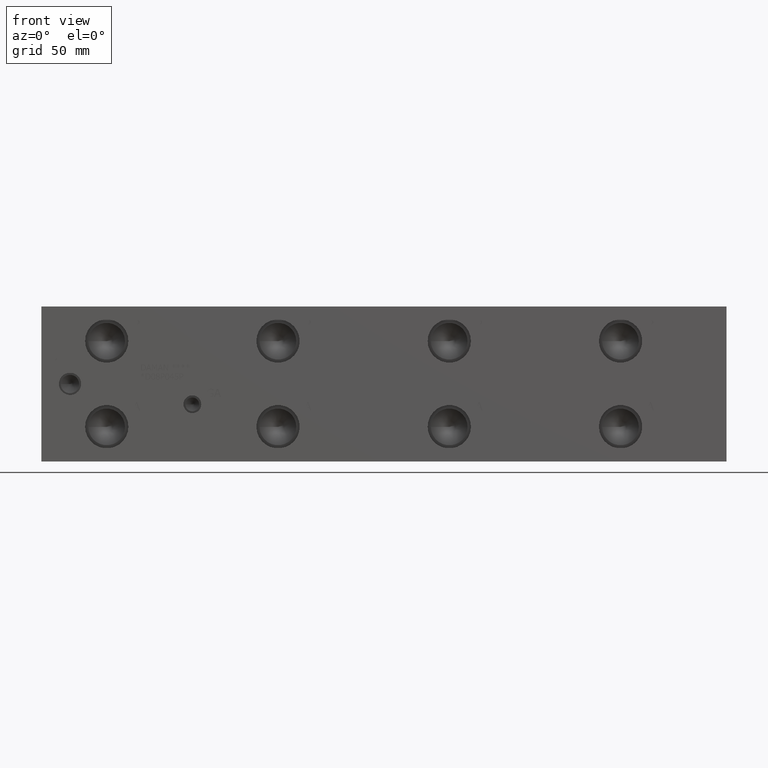
[diagram: clean part render]
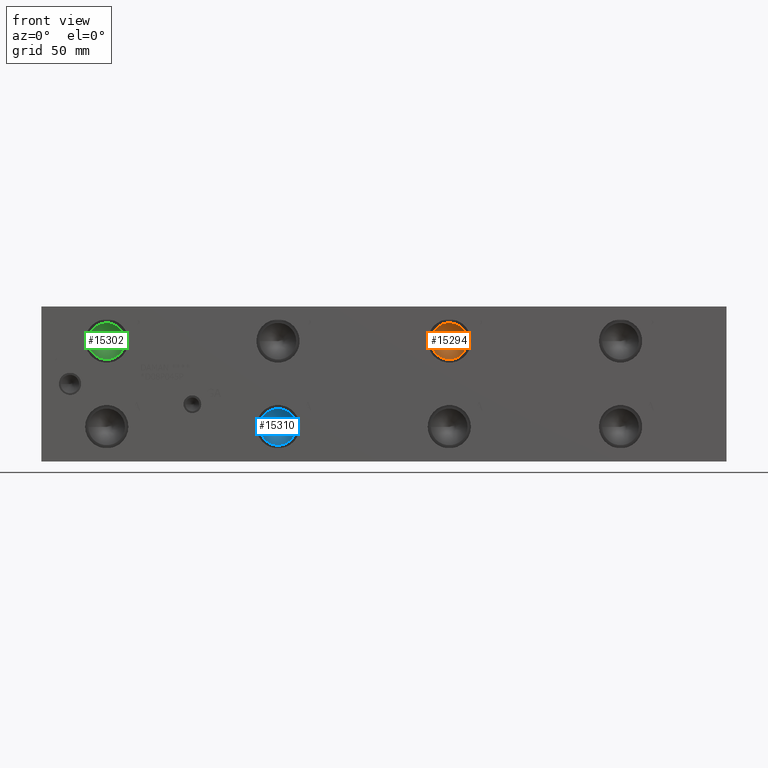
[diagram: same view with three faces highlighted in distinct colors, each labeled with its STEP entity id]
A machine part, front view with three faces highlighted in distinct colors.
Their STEP definitions:

[orange] entity #15294 — the highlighted conical surface has half-angle 60 deg.
#148=CONICAL_SURFACE('',#16049,7.14375,1.0471975511966);
#493=CIRCLE('',#16050,14.2875);
#494=CIRCLE('',#16051,14.2875);
#1935=FACE_OUTER_BOUND('',#2823,.T.);
#2823=EDGE_LOOP('',(#12756,#12757,#12758,#12759));
#4304=LINE('',#25697,#5667);
#5667=VECTOR('',#18878,7.14375);
#6955=VERTEX_POINT('',#25693);
#6956=VERTEX_POINT('',#25694);
#6957=VERTEX_POINT('',#25696);
#8995=EDGE_CURVE('',#6955,#6956,#493,.T.);
#8996=EDGE_CURVE('',#6956,#6957,#4304,.T.);
#8997=EDGE_CURVE('',#6956,#6955,#494,.T.);
#12756=ORIENTED_EDGE('',*,*,#8995,.T.);
#12757=ORIENTED_EDGE('',*,*,#8996,.T.);
#12758=ORIENTED_EDGE('',*,*,#8996,.F.);
#12759=ORIENTED_EDGE('',*,*,#8997,.T.);
#15294=ADVANCED_FACE('',(#1935),#148,.F.);
#16049=AXIS2_PLACEMENT_3D('',#25692,#18874,#18875);
#16050=AXIS2_PLACEMENT_3D('',#25695,#18876,#18877);
#16051=AXIS2_PLACEMENT_3D('',#25698,#18879,#18880);
#18874=DIRECTION('center_axis',(0.,-1.,0.));
#18875=DIRECTION('ref_axis',(1.,0.,0.));
#18876=DIRECTION('center_axis',(0.,-1.,0.));
#18877=DIRECTION('ref_axis',(1.,0.,0.));
#18878=DIRECTION('',(0.866025403784438,0.5,1.06057523872491E-16));
#18879=DIRECTION('center_axis',(0.,-1.,0.));
#18880=DIRECTION('ref_axis',(1.,0.,0.));
#25692=CARTESIAN_POINT('Origin',(317.5,23.9485359855234,93.6752));
#25693=CARTESIAN_POINT('',(331.7875,19.82409,93.6752));
#25694=CARTESIAN_POINT('',(303.2125,19.82409,93.6752));
#25695=CARTESIAN_POINT('Origin',(317.5,19.82409,93.6752));
#25696=CARTESIAN_POINT('',(317.5,28.0729819710468,93.6752));
#25697=CARTESIAN_POINT('',(310.35625,23.9485359855234,93.6752));
#25698=CARTESIAN_POINT('Origin',(317.5,19.82409,93.6752));

[blue] entity #15310 — the highlighted conical surface has half-angle 60 deg.
#152=CONICAL_SURFACE('',#16085,7.14375,1.0471975511966);
#513=CIRCLE('',#16086,14.2875);
#514=CIRCLE('',#16087,14.2875);
#1951=FACE_OUTER_BOUND('',#2843,.T.);
#2843=EDGE_LOOP('',(#12828,#12829,#12830,#12831));
#4316=LINE('',#25769,#5679);
#5679=VECTOR('',#18962,7.14375);
#6979=VERTEX_POINT('',#25765);
#6980=VERTEX_POINT('',#25766);
#6981=VERTEX_POINT('',#25768);
#9027=EDGE_CURVE('',#6979,#6980,#513,.T.);
#9028=EDGE_CURVE('',#6980,#6981,#4316,.T.);
#9029=EDGE_CURVE('',#6980,#6979,#514,.T.);
#12828=ORIENTED_EDGE('',*,*,#9027,.T.);
#12829=ORIENTED_EDGE('',*,*,#9028,.T.);
#12830=ORIENTED_EDGE('',*,*,#9028,.F.);
#12831=ORIENTED_EDGE('',*,*,#9029,.T.);
#15310=ADVANCED_FACE('',(#1951),#152,.F.);
#16085=AXIS2_PLACEMENT_3D('',#25764,#18958,#18959);
#16086=AXIS2_PLACEMENT_3D('',#25767,#18960,#18961);
#16087=AXIS2_PLACEMENT_3D('',#25770,#18963,#18964);
#18958=DIRECTION('center_axis',(0.,-1.,0.));
#18959=DIRECTION('ref_axis',(1.,0.,0.));
#18960=DIRECTION('center_axis',(0.,-1.,0.));
#18961=DIRECTION('ref_axis',(1.,0.,0.));
#18962=DIRECTION('',(0.866025403784438,0.5,1.06057523872491E-16));
#18963=DIRECTION('center_axis',(0.,-1.,0.));
#18964=DIRECTION('ref_axis',(1.,0.,0.));
#25764=CARTESIAN_POINT('Origin',(184.15,23.9485359855234,26.9748));
#25765=CARTESIAN_POINT('',(198.4375,19.82409,26.9748));
#25766=CARTESIAN_POINT('',(169.8625,19.82409,26.9748));
#25767=CARTESIAN_POINT('Origin',(184.15,19.82409,26.9748));
#25768=CARTESIAN_POINT('',(184.15,28.0729819710468,26.9748));
#25769=CARTESIAN_POINT('',(177.00625,23.9485359855234,26.9748));
#25770=CARTESIAN_POINT('Origin',(184.15,19.82409,26.9748));

[green] entity #15302 — the highlighted conical surface has half-angle 60 deg.
#150=CONICAL_SURFACE('',#16067,7.14375,1.0471975511966);
#503=CIRCLE('',#16068,14.2875);
#504=CIRCLE('',#16069,14.2875);
#1943=FACE_OUTER_BOUND('',#2833,.T.);
#2833=EDGE_LOOP('',(#12792,#12793,#12794,#12795));
#4310=LINE('',#25733,#5673);
#5673=VECTOR('',#18920,7.14375);
#6967=VERTEX_POINT('',#25729);
#6968=VERTEX_POINT('',#25730);
#6969=VERTEX_POINT('',#25732);
#9011=EDGE_CURVE('',#6967,#6968,#503,.T.);
#9012=EDGE_CURVE('',#6968,#6969,#4310,.T.);
#9013=EDGE_CURVE('',#6968,#6967,#504,.T.);
#12792=ORIENTED_EDGE('',*,*,#9011,.T.);
#12793=ORIENTED_EDGE('',*,*,#9012,.T.);
#12794=ORIENTED_EDGE('',*,*,#9012,.F.);
#12795=ORIENTED_EDGE('',*,*,#9013,.T.);
#15302=ADVANCED_FACE('',(#1943),#150,.F.);
#16067=AXIS2_PLACEMENT_3D('',#25728,#18916,#18917);
#16068=AXIS2_PLACEMENT_3D('',#25731,#18918,#18919);
#16069=AXIS2_PLACEMENT_3D('',#25734,#18921,#18922);
#18916=DIRECTION('center_axis',(0.,-1.,0.));
#18917=DIRECTION('ref_axis',(1.,0.,0.));
#18918=DIRECTION('center_axis',(0.,-1.,0.));
#18919=DIRECTION('ref_axis',(1.,0.,0.));
#18920=DIRECTION('',(0.866025403784438,0.5,1.06057523872491E-16));
#18921=DIRECTION('center_axis',(0.,-1.,0.));
#18922=DIRECTION('ref_axis',(1.,0.,0.));
#25728=CARTESIAN_POINT('Origin',(50.8,23.9485359855234,93.6752));
#25729=CARTESIAN_POINT('',(65.0875,19.82409,93.6752));
#25730=CARTESIAN_POINT('',(36.5125,19.82409,93.6752));
#25731=CARTESIAN_POINT('Origin',(50.8,19.82409,93.6752));
#25732=CARTESIAN_POINT('',(50.8,28.0729819710468,93.6752));
#25733=CARTESIAN_POINT('',(43.65625,23.9485359855234,93.6752));
#25734=CARTESIAN_POINT('Origin',(50.8,19.82409,93.6752));